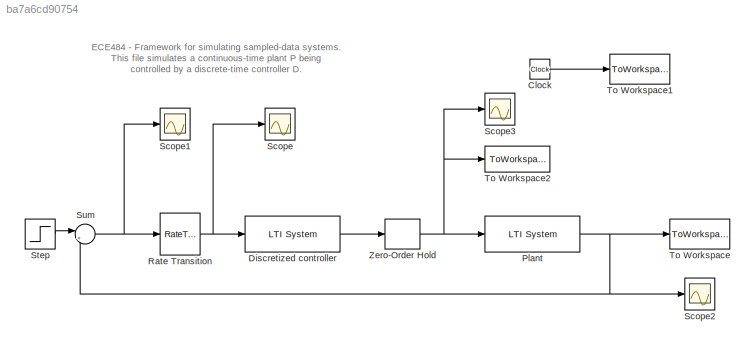
MODEL slx_ba7a6cd90754
KIND model
CONFIG AbsTol = 1e-12
CONFIG FixedStep = T
CONFIG MaxStep = 0.01
CONFIG MinStep = auto
CONFIG RelTol = 1e-12
CONFIG SampleTimeConstraint = Unconstrained
CONFIG Solver = ode45
CONFIG SolverMode = Auto
CONFIG SolverName = ode45
CONFIG StartTime = 0.0
CONFIG StopTime = tfinal
BLOCK [Clock] Clock
BLOCK [Reference] Discretized controller  REF=cstblocks/LTI System
  IC = []
  Ports = [1, 1]
  RTWMemSecDataConstants = Inherit from model
  RTWMemSecDataInternal = Inherit from model
  RTWMemSecDataParameters = Inherit from model
  RTWMemSecFuncExecute = Inherit from model
  RTWMemSecFuncInitTerm = Inherit from model
  SourceBlock = cstblocks/LTI System
  SourceType = LTI Block
  sys = D
BLOCK [Reference] Plant  REF=cstblocks/LTI System
  IC = []
  Ports = [1, 1]
  RTWMemSecDataConstants = Inherit from model
  RTWMemSecDataInternal = Inherit from model
  RTWMemSecDataParameters = Inherit from model
  RTWMemSecFuncExecute = Inherit from model
  RTWMemSecFuncInitTerm = Inherit from model
  SourceBlock = cstblocks/LTI System
  SourceType = LTI Block
  sys = P
BLOCK [RateTransition] Rate Transition
  OutPortSampleTime = T
BLOCK [Scope] Scope
  DataFormat = StructureWithTime
  Decimation = 1
  Floating = off
  Grid = on
  LimitDataPoints = off
  MaxDataPoints = 5000
  NumInputPorts = 1
  Ports = [1]
  SampleInput = off
  SampleTime = -1
  SaveName = ScopeData1
  SaveToWorkspace = off
  ShowLegends = off
  TickLabels = OneTimeTick
  TimeRange = auto
  YMax = 8.76404
  YMin = -7.94103
  ZoomMode = on
BLOCK [Scope] Scope1
  DataFormat = StructureWithTime
  Decimation = 1
  Floating = off
  Grid = on
  LimitDataPoints = off
  MaxDataPoints = 5000
  NumInputPorts = 1
  Ports = [1]
  SampleInput = off
  SampleTime = -1
  SaveName = ScopeData1
  SaveToWorkspace = off
  ShowLegends = off
  TickLabels = OneTimeTick
  TimeRange = auto
  YMax = 8.76404
  YMin = -7.94103
  ZoomMode = on
BLOCK [Scope] Scope2
  DataFormat = StructureWithTime
  Decimation = 1
  Floating = off
  Grid = on
  LimitDataPoints = off
  MaxDataPoints = 5000
  NumInputPorts = 1
  Ports = [1]
  SampleInput = off
  SampleTime = -1
  SaveName = ScopeData2
  SaveToWorkspace = off
  ShowLegends = off
  TickLabels = OneTimeTick
  TimeRange = auto
  YMax = 8.94103
  YMin = -7.76404
  ZoomMode = on
BLOCK [Scope] Scope3
  DataFormat = StructureWithTime
  Decimation = 1
  Floating = off
  Grid = on
  LimitDataPoints = off
  MaxDataPoints = 5000
  NumInputPorts = 1
  Ports = [1]
  SampleInput = off
  SampleTime = -1
  SaveName = ScopeData
  SaveToWorkspace = off
  ShowLegends = off
  TickLabels = OneTimeTick
  TimeRange = auto
  YMax = 20.79205
  YMin = -15.91123
  ZoomMode = on
BLOCK [Step] Step
  Time = 0
BLOCK [Sum] Sum
  Inputs = |+-
  Ports = [2, 1]
BLOCK [ToWorkspace] To Workspace
  MaxDataPoints = inf
  Ports = [1]
  SampleTime = -1
  VariableName = y_sim
BLOCK [ToWorkspace] To Workspace1
  MaxDataPoints = inf
  Ports = [1]
  SampleTime = -1
  VariableName = t_sim
BLOCK [ToWorkspace] To Workspace2
  MaxDataPoints = inf
  Ports = [1]
  VariableName = u_sim
BLOCK [ZeroOrderHold] Zero-Order Hold
  SampleTime = T
ANNOTATION (root): ECE484 - Framework for simulating sampled-data systems. This file simulates a continuous-time plant P being controlled by a discrete-time controller D.
LINE Clock:1 -> To Workspace1:1
LINE Discretized controller:1 -> Zero-Order Hold:1
NET Plant:1 -> Scope2:1, Sum:2, To Workspace:1
NET Rate Transition:1 -> Discretized controller:1, Scope:1
LINE Step:1 -> Sum:1
NET Sum:1 -> Rate Transition:1, Scope1:1
NET Zero-Order Hold:1 -> Plant:1, Scope3:1, To Workspace2:1
note: NET lines group one-source signal fan-out (src -> all destinations, sorted); 1:1 wires keep LINE
